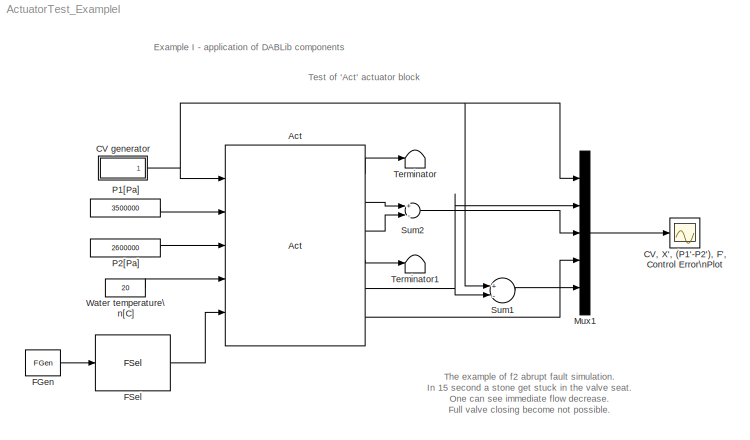
MODEL ActuatorTest_ExampleI
KIND model
CONFIG AbsTol = 1e-6
CONFIG FixedStep = 0.0025
CONFIG MaxStep = auto
CONFIG RelTol = 1e-3
CONFIG Solver = ode4
CONFIG StartTime = 0.0
CONFIG StopTime = 50
BLOCK [Reference] Act  REF=DABLib/Act
  Dist = off
  Ports = [5, 6, 0, 0, 0]
  SourceBlock = DABLib/Act
  SourceType = Actuator
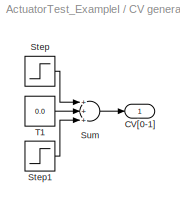
BLOCK [SubSystem] CV generator
  Ports = [0, 1, 0, 0, 0]
  ShowPortLabels = on
BLOCK [Outport] CV generator/CV[0-1]
  InitialOutput = 0
  OutputWhenDisabled = held
  Port = 1
BLOCK [Step] CV generator/Step
  After = 0.5
  Before = 0
  Time = 0
BLOCK [Step] CV generator/Step1
  After = 0.5
  Before = 0
  Time = 25
BLOCK [Sum] CV generator/Sum
  Inputs = +++
  Ports = [3, 1, 0, 0, 0]
BLOCK [Constant] CV generator/T1
  Value = 0.0
BLOCK [Scope] CV, X', (P1'-P2'), F', Control Error\nPlot
  Decimation = 1
  Floating = off
  Grid = on
  LimitMaxRows = off
  MaxRows = 5000
  Ports = [1, 0, 0, 0, 0]
  SampleInput = off
  SampleTime = 0
  SaveName = ScopeData
  SaveToWorkspace = off
  TickLabels = on
  TimeRange = auto
  YMax = 1
  YMin = 0
  ZoomMode = xonly
BLOCK [Reference] FGen  REF=DABLib/FGen
  FDT = 0
  FSD = 1
  From = 15
  MFS = 1
  Ports = [0, 1, 0, 0, 0]
  SourceBlock = DABLib/FGen
  SourceType = Fault generator
  To = inf
BLOCK [Reference] FSel  REF=DABLib/FSel
  FSel = f2 - Valve plug or valve seat sedimentation
  Ports = [1, 1, 0, 0, 0]
  SourceBlock = DABLib/FSel
  SourceType = Fault vector element attribution
BLOCK [Mux] Mux1
  Inputs = 5
  Ports = [5, 1, 0, 0, 0]
BLOCK [Constant] P1[Pa] 
  Value = 3500000
BLOCK [Constant] P2[Pa] 
  Value = 2600000
BLOCK [Sum] Sum1
  Inputs = +-
  Ports = [2, 1, 0, 0, 0]
BLOCK [Sum] Sum2
  Inputs = +-
  Ports = [2, 1, 0, 0, 0]
BLOCK [Terminator] Terminator
BLOCK [Terminator] Terminator1
BLOCK [Constant] Water temperature\n[C]
  Value = 20
LINE Act:1 -> Terminator:1
LINE Act:2 -> Sum2:1
LINE Act:3 -> Sum2:2
LINE Act:4 -> Terminator1:1
NET Act:5 -> Mux1:2, Sum1:2
LINE Act:6 -> Mux1:4
LINE CV generator/Step1:1 -> CV generator/Sum:3
LINE CV generator/Step:1 -> CV generator/Sum:1
LINE CV generator/Sum:1 -> CV generator/CV[0-1]:1
LINE CV generator/T1:1 -> CV generator/Sum:2
NET CV generator:1 -> Act:1, Mux1:1, Sum1:1
LINE FGen:1 -> FSel:1
LINE FSel:1 -> Act:5
LINE Mux1:1 -> CV, X', (P1'-P2'), F', Control Error\nPlot:1
LINE P1[Pa] :1 -> Act:2
LINE P2[Pa] :1 -> Act:3
LINE Sum1:1 -> Mux1:5
LINE Sum2:1 -> Mux1:3
LINE Water temperature\n[C]:1 -> Act:4
note: NET lines group one-source signal fan-out (src -> all destinations, sorted); 1:1 wires keep LINE
